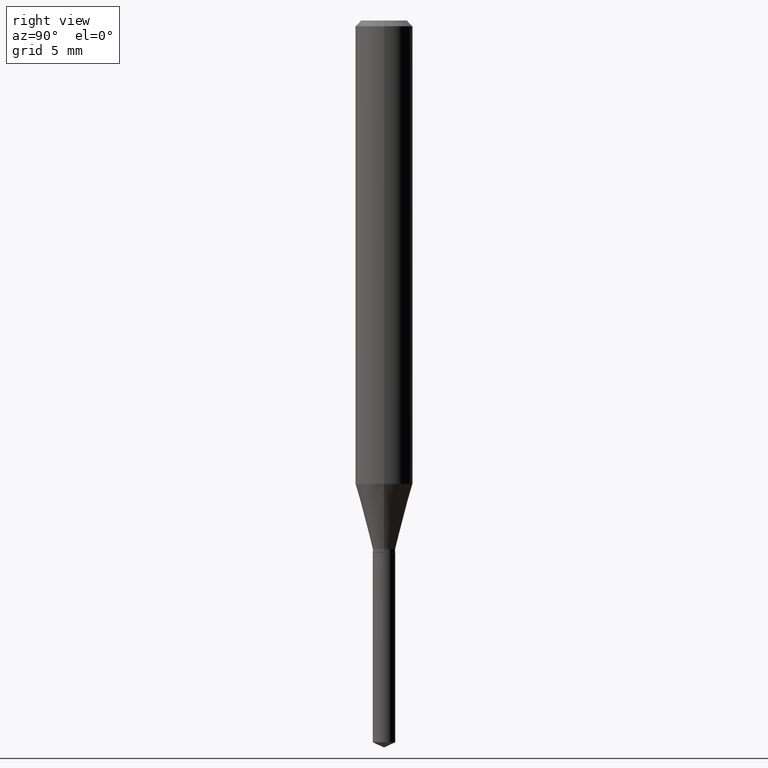
[diagram: clean part render]
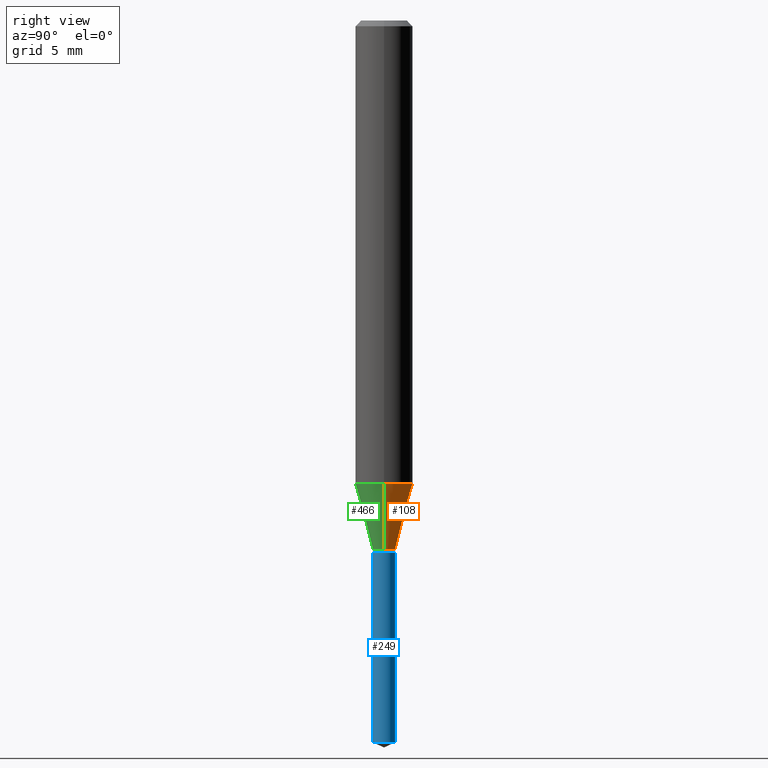
[diagram: same view with three faces highlighted in distinct colors, each labeled with its STEP entity id]
A machine part, right view with three faces highlighted in distinct colors.
Their STEP definitions:

[orange] entity #108 — the highlighted conical surface has half-angle 15 deg.
#7 = VERTEX_POINT ( 'NONE', #413 ) ;
#14 = VERTEX_POINT ( 'NONE', #221 ) ;
#20 = VERTEX_POINT ( 'NONE', #340 ) ;
#26 = CARTESIAN_POINT ( 'NONE',  ( -0.02305000000000000104, -3.633555003533102036E-15, -1.087599999999999900 ) ) ;
#47 = CARTESIAN_POINT ( 'NONE',  ( -0.02305000000000000104, -3.644727743817399659E-15, -1.087599999999999900 ) ) ;
#50 = DIRECTION ( 'NONE',  ( 0.2588190451025211836, 1.565188264969622559E-15, 0.9659258262890679791 ) ) ;
#64 = DIRECTION ( 'NONE',  ( -2.445468806185136597E-29, 3.491481338843145583E-15, 1.000000000000000000 ) ) ;
#69 = DIRECTION ( 'NONE',  ( -2.445468806185136597E-29, 3.491481338843145583E-15, 1.000000000000000000 ) ) ;
#98 = VECTOR ( 'NONE', #272, 39.37007874015748854 ) ;
#108 = ADVANCED_FACE ( 'NONE', ( #240 ), #328, .T. ) ;
#119 = AXIS2_PLACEMENT_3D ( 'NONE', #191, #458, #420 ) ;
#148 = EDGE_CURVE ( 'NONE', #14, #358, #306, .T. ) ;
#190 = VECTOR ( 'NONE', #50, 39.37007874015748854 ) ;
#191 = CARTESIAN_POINT ( 'NONE',  ( 2.659691873606954161E-29, -3.797335104125804446E-15, -1.087599999999999900 ) ) ;
#201 = CARTESIAN_POINT ( 'NONE',  ( 0.02305000000000000104, -3.958292393846472597E-15, -1.087599999999999900 ) ) ;
#221 = CARTESIAN_POINT ( 'NONE',  ( 0.02305000000000000104, -3.958292393846472597E-15, -1.087599999999999900 ) ) ;
#229 = EDGE_CURVE ( 'NONE', #7, #20, #408, .T. ) ;
#240 = FACE_OUTER_BOUND ( 'NONE', #363, .T. ) ;
#254 = DIRECTION ( 'NONE',  ( 1.000000000000000000, -6.982962677686262766E-15, 0.000000000000000000 ) ) ;
#261 = ORIENTED_EDGE ( 'NONE', *, *, #229, .F. ) ;
#272 = DIRECTION ( 'NONE',  ( -0.2588190451025211836, 5.211531920934547886E-15, 0.9659258262890679791 ) ) ;
#286 = EDGE_CURVE ( 'NONE', #358, #20, #490, .T. ) ;
#287 = CARTESIAN_POINT ( 'NONE',  ( 2.659691873606954161E-29, -3.797335104125804446E-15, -1.087599999999999900 ) ) ;
#306 = CIRCLE ( 'NONE', #390, 0.02305000000000000104 ) ;
#328 = CONICAL_SURFACE ( 'NONE', #119, 0.02305000000000000104, 0.2617993877991499074 ) ;
#340 = CARTESIAN_POINT ( 'NONE',  ( -0.05905000000000011628, -2.908665731650779766E-15, -0.9532461709275201756 ) ) ;
#351 = LINE ( 'NONE', #201, #190 ) ;
#358 = VERTEX_POINT ( 'NONE', #47 ) ;
#363 = EDGE_LOOP ( 'NONE', ( #488, #405, #261, #443 ) ) ;
#376 = CARTESIAN_POINT ( 'NONE',  ( 2.331133775618675358E-29, -3.328241217117120048E-15, -0.9532461709275201756 ) ) ;
#383 = DIRECTION ( 'NONE',  ( 1.000000000000000000, -6.982962677686266711E-15, 0.000000000000000000 ) ) ;
#390 = AXIS2_PLACEMENT_3D ( 'NONE', #287, #64, #254 ) ;
#401 = AXIS2_PLACEMENT_3D ( 'NONE', #376, #69, #383 ) ;
#405 = ORIENTED_EDGE ( 'NONE', *, *, #286, .T. ) ;
#408 = CIRCLE ( 'NONE', #401, 0.05905000000000011628 ) ;
#413 = CARTESIAN_POINT ( 'NONE',  ( 0.05905000000000011628, -3.740585163234494179E-15, -0.9532461709275201756 ) ) ;
#420 = DIRECTION ( 'NONE',  ( 1.000000000000000000, -6.982962677686262766E-15, 0.000000000000000000 ) ) ;
#443 = ORIENTED_EDGE ( 'NONE', *, *, #461, .F. ) ;
#458 = DIRECTION ( 'NONE',  ( -2.445468806185136597E-29, 3.491481338843145583E-15, 1.000000000000000000 ) ) ;
#461 = EDGE_CURVE ( 'NONE', #14, #7, #351, .T. ) ;
#488 = ORIENTED_EDGE ( 'NONE', *, *, #148, .T. ) ;
#490 = LINE ( 'NONE', #26, #98 ) ;

[blue] entity #249 — the highlighted cylindrical surface (edge-blend (fillet) strip) has radius 0.5855 mm, axis along (-0, 0, 1).
#1 = DIRECTION ( 'NONE',  ( -2.445470214571802116E-29, 3.491479321953280158E-15, 1.000000000000000000 ) ) ;
#11 = CARTESIAN_POINT ( 'NONE',  ( 3.632381575223795657E-29, -5.186076634322272110E-15, -1.485351608479527075 ) ) ;
#27 = AXIS2_PLACEMENT_3D ( 'NONE', #187, #313, #181 ) ;
#38 = CARTESIAN_POINT ( 'NONE',  ( 2.676565608369631794E-29, -3.821426325363822773E-15, -1.094499999999999806 ) ) ;
#84 = EDGE_CURVE ( 'NONE', #172, #159, #104, .T. ) ;
#104 = CIRCLE ( 'NONE', #477, 0.02305000000000000104 ) ;
#129 = CARTESIAN_POINT ( 'NONE',  ( 1.637801005927298229E-16, 0.02304999999999618118, -1.094500000000000028 ) ) ;
#131 = LINE ( 'NONE', #129, #361 ) ;
#142 = AXIS2_PLACEMENT_3D ( 'NONE', #11, #193, #469 ) ;
#145 = FACE_OUTER_BOUND ( 'NONE', #342, .T. ) ;
#159 = VERTEX_POINT ( 'NONE', #345 ) ;
#160 = CIRCLE ( 'NONE', #142, 0.02305000000000000104 ) ;
#162 = EDGE_CURVE ( 'NONE', #348, #172, #211, .T. ) ;
#167 = ORIENTED_EDGE ( 'NONE', *, *, #385, .T. ) ;
#169 = VERTEX_POINT ( 'NONE', #332 ) ;
#172 = VERTEX_POINT ( 'NONE', #270 ) ;
#181 = DIRECTION ( 'NONE',  ( -6.982962677686267499E-15, -1.000000000000000000, 5.925917556755451686E-15 ) ) ;
#187 = CARTESIAN_POINT ( 'NONE',  ( 2.676565608369631794E-29, -3.821426325363822773E-15, -1.094499999999999806 ) ) ;
#193 = DIRECTION ( 'NONE',  ( -2.445470214571802116E-29, 3.491479321953280158E-15, 1.000000000000000000 ) ) ;
#211 = LINE ( 'NONE', #338, #423 ) ;
#232 = ORIENTED_EDGE ( 'NONE', *, *, #162, .F. ) ;
#233 = ORIENTED_EDGE ( 'NONE', *, *, #84, .F. ) ;
#249 = ADVANCED_FACE ( 'NONE', ( #145 ), #417, .T. ) ;
#270 = CARTESIAN_POINT ( 'NONE',  ( -1.609572897206416996E-16, -0.02305000000000382437, -1.094499999999999806 ) ) ;
#308 = DIRECTION ( 'NONE',  ( -6.982962677686267499E-15, -1.000000000000000000, 5.925917556755451686E-15 ) ) ;
#313 = DIRECTION ( 'NONE',  ( -2.445470214571802116E-29, 3.491479321953280158E-15, 1.000000000000000000 ) ) ;
#320 = CARTESIAN_POINT ( 'NONE',  ( -1.609572897206320607E-16, -0.02305000000000518440, -1.485351608479527075 ) ) ;
#332 = CARTESIAN_POINT ( 'NONE',  ( 1.637801005927393879E-16, 0.02304999999999480728, -1.485351608479527075 ) ) ;
#338 = CARTESIAN_POINT ( 'NONE',  ( -1.609572897206416996E-16, -0.02305000000000382437, -1.094499999999999806 ) ) ;
#342 = EDGE_LOOP ( 'NONE', ( #167, #389, #233, #232 ) ) ;
#345 = CARTESIAN_POINT ( 'NONE',  ( 1.637801005927394372E-16, 0.02304999999999617771, -1.094500000000000028 ) ) ;
#348 = VERTEX_POINT ( 'NONE', #320 ) ;
#361 = VECTOR ( 'NONE', #432, 39.37007874015748143 ) ;
#366 = EDGE_CURVE ( 'NONE', #169, #159, #131, .T. ) ;
#385 = EDGE_CURVE ( 'NONE', #348, #169, #160, .T. ) ;
#389 = ORIENTED_EDGE ( 'NONE', *, *, #366, .T. ) ;
#417 = CYLINDRICAL_SURFACE ( 'NONE', #27, 0.02305000000000000104 ) ;
#422 = DIRECTION ( 'NONE',  ( -2.445470214571802396E-29, 3.491479321953280158E-15, 1.000000000000000000 ) ) ;
#423 = VECTOR ( 'NONE', #422, 39.37007874015748143 ) ;
#432 = DIRECTION ( 'NONE',  ( -2.445470214571802396E-29, 3.491479321953280158E-15, 1.000000000000000000 ) ) ;
#469 = DIRECTION ( 'NONE',  ( -6.982962677686267499E-15, -1.000000000000000000, 0.000000000000000000 ) ) ;
#477 = AXIS2_PLACEMENT_3D ( 'NONE', #38, #1, #308 ) ;

[green] entity #466 — the highlighted conical surface has half-angle 15 deg.
#2 = AXIS2_PLACEMENT_3D ( 'NONE', #76, #419, #384 ) ;
#7 = VERTEX_POINT ( 'NONE', #413 ) ;
#9 = AXIS2_PLACEMENT_3D ( 'NONE', #316, #472, #238 ) ;
#14 = VERTEX_POINT ( 'NONE', #221 ) ;
#20 = VERTEX_POINT ( 'NONE', #340 ) ;
#26 = CARTESIAN_POINT ( 'NONE',  ( -0.02305000000000000104, -3.633555003533102036E-15, -1.087599999999999900 ) ) ;
#47 = CARTESIAN_POINT ( 'NONE',  ( -0.02305000000000000104, -3.644727743817399659E-15, -1.087599999999999900 ) ) ;
#50 = DIRECTION ( 'NONE',  ( 0.2588190451025211836, 1.565188264969622559E-15, 0.9659258262890679791 ) ) ;
#76 = CARTESIAN_POINT ( 'NONE',  ( 2.331133775618675358E-29, -3.328241217117120048E-15, -0.9532461709275201756 ) ) ;
#98 = VECTOR ( 'NONE', #272, 39.37007874015748854 ) ;
#156 = EDGE_CURVE ( 'NONE', #20, #7, #454, .T. ) ;
#161 = FACE_OUTER_BOUND ( 'NONE', #400, .T. ) ;
#190 = VECTOR ( 'NONE', #50, 39.37007874015748854 ) ;
#201 = CARTESIAN_POINT ( 'NONE',  ( 0.02305000000000000104, -3.958292393846472597E-15, -1.087599999999999900 ) ) ;
#221 = CARTESIAN_POINT ( 'NONE',  ( 0.02305000000000000104, -3.958292393846472597E-15, -1.087599999999999900 ) ) ;
#234 = DIRECTION ( 'NONE',  ( 1.000000000000000000, -6.982962677686262766E-15, 0.000000000000000000 ) ) ;
#238 = DIRECTION ( 'NONE',  ( 1.000000000000000000, -6.982962677686262766E-15, 0.000000000000000000 ) ) ;
#245 = ORIENTED_EDGE ( 'NONE', *, *, #286, .F. ) ;
#272 = DIRECTION ( 'NONE',  ( -0.2588190451025211836, 5.211531920934547886E-15, 0.9659258262890679791 ) ) ;
#286 = EDGE_CURVE ( 'NONE', #358, #20, #490, .T. ) ;
#297 = ORIENTED_EDGE ( 'NONE', *, *, #156, .F. ) ;
#315 = CIRCLE ( 'NONE', #402, 0.02305000000000000104 ) ;
#316 = CARTESIAN_POINT ( 'NONE',  ( 2.659691873606954161E-29, -3.797335104125804446E-15, -1.087599999999999900 ) ) ;
#334 = EDGE_CURVE ( 'NONE', #358, #14, #315, .T. ) ;
#340 = CARTESIAN_POINT ( 'NONE',  ( -0.05905000000000011628, -2.908665731650779766E-15, -0.9532461709275201756 ) ) ;
#341 = CARTESIAN_POINT ( 'NONE',  ( 2.659691873606954161E-29, -3.797335104125804446E-15, -1.087599999999999900 ) ) ;
#351 = LINE ( 'NONE', #201, #190 ) ;
#358 = VERTEX_POINT ( 'NONE', #47 ) ;
#380 = ORIENTED_EDGE ( 'NONE', *, *, #334, .T. ) ;
#384 = DIRECTION ( 'NONE',  ( 1.000000000000000000, -6.982962677686266711E-15, 0.000000000000000000 ) ) ;
#400 = EDGE_LOOP ( 'NONE', ( #245, #380, #431, #297 ) ) ;
#402 = AXIS2_PLACEMENT_3D ( 'NONE', #341, #487, #234 ) ;
#413 = CARTESIAN_POINT ( 'NONE',  ( 0.05905000000000011628, -3.740585163234494179E-15, -0.9532461709275201756 ) ) ;
#419 = DIRECTION ( 'NONE',  ( -2.445468806185136597E-29, 3.491481338843145583E-15, 1.000000000000000000 ) ) ;
#430 = CONICAL_SURFACE ( 'NONE', #9, 0.02305000000000000104, 0.2617993877991499074 ) ;
#431 = ORIENTED_EDGE ( 'NONE', *, *, #461, .T. ) ;
#454 = CIRCLE ( 'NONE', #2, 0.05905000000000011628 ) ;
#461 = EDGE_CURVE ( 'NONE', #14, #7, #351, .T. ) ;
#466 = ADVANCED_FACE ( 'NONE', ( #161 ), #430, .T. ) ;
#472 = DIRECTION ( 'NONE',  ( -2.445468806185136597E-29, 3.491481338843145583E-15, 1.000000000000000000 ) ) ;
#487 = DIRECTION ( 'NONE',  ( -2.445468806185136597E-29, 3.491481338843145583E-15, 1.000000000000000000 ) ) ;
#490 = LINE ( 'NONE', #26, #98 ) ;